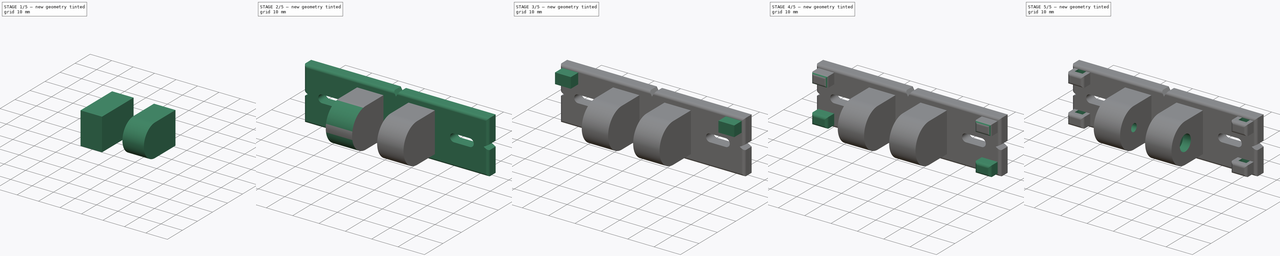
[diagram: build sequence overview — one tinted view per stage of 5, left to right]
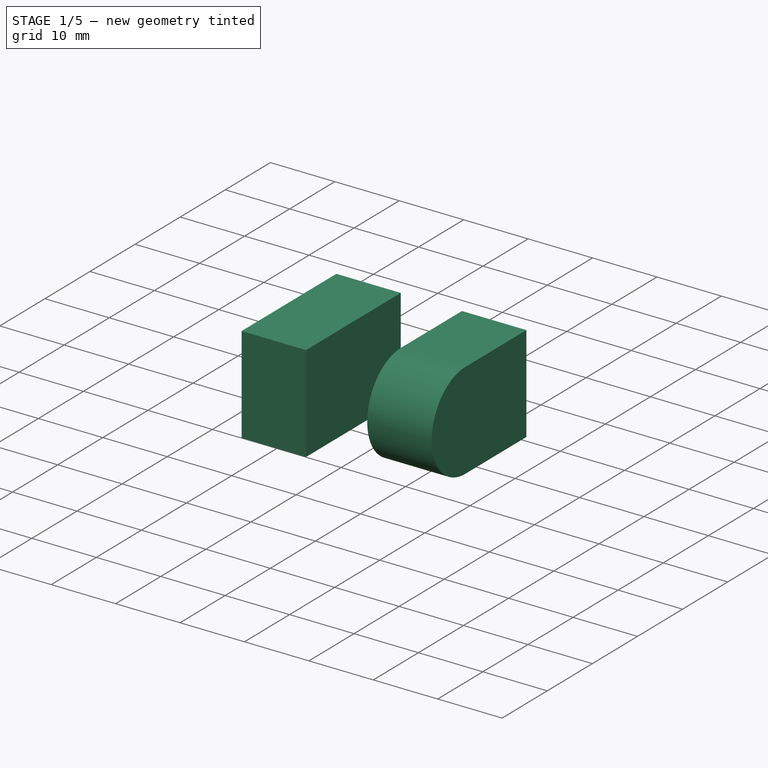
[diagram: stage 1 of 5 — iso view after this stage's code; geometry added in this stage tinted green]
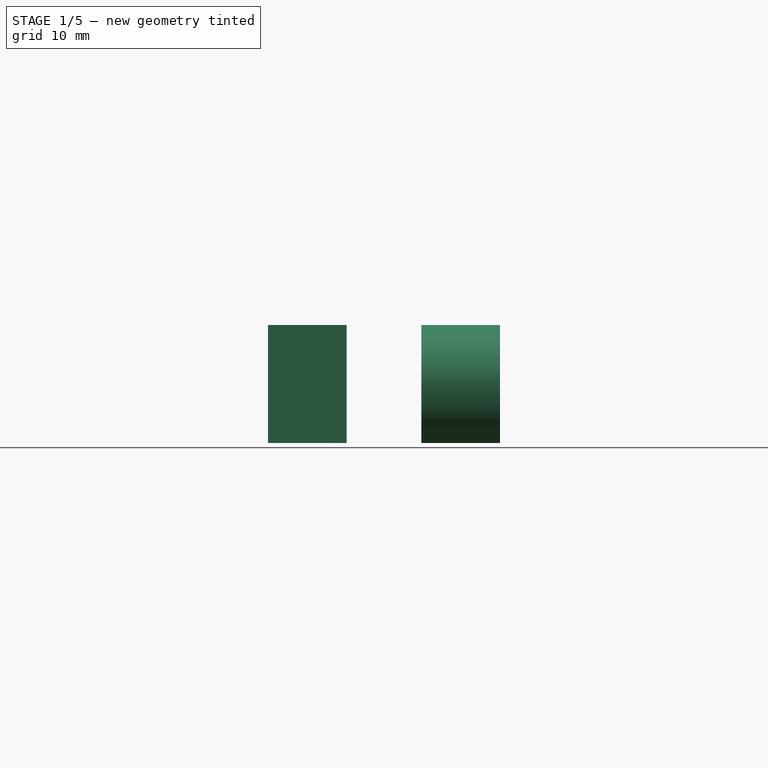
[diagram: stage 1 of 5 — front view after this stage's code; geometry added in this stage tinted green]
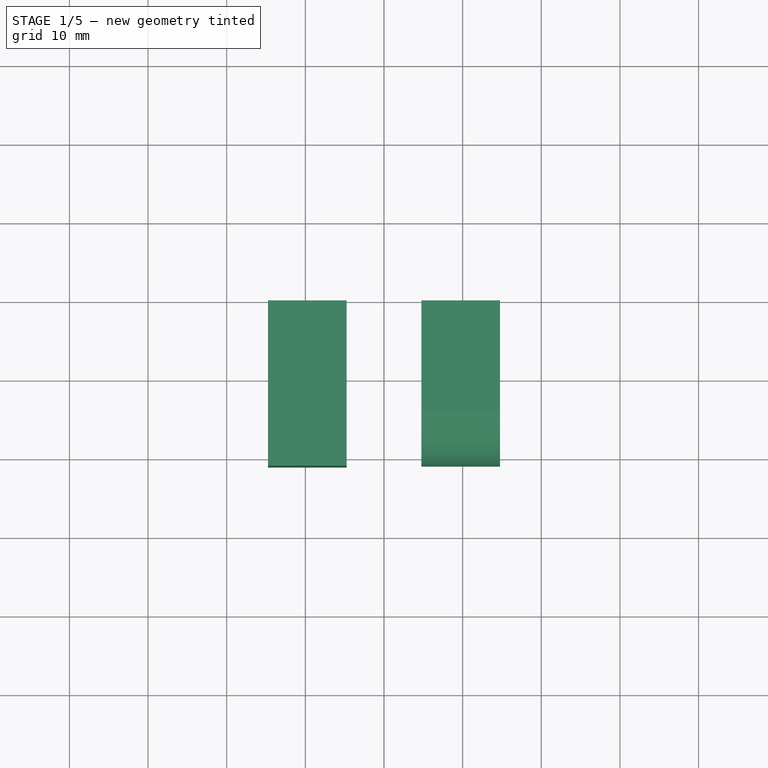
[diagram: stage 1 of 5 — top view after this stage's code; geometry added in this stage tinted green]
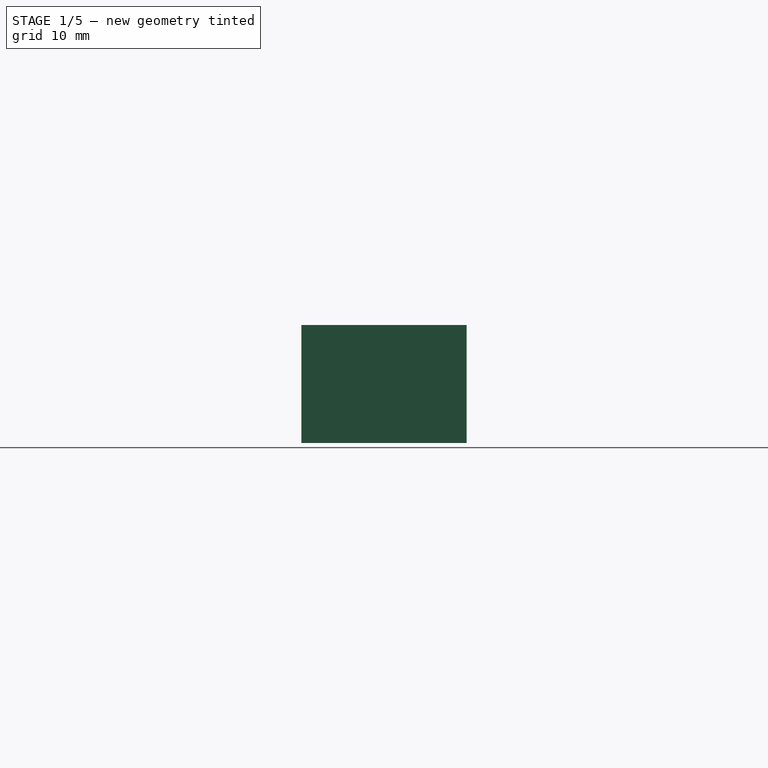
[diagram: stage 1 of 5 — right view after this stage's code; geometry added in this stage tinted green]
FCSTD DOCUMENT  (FreeCAD 0.19R)
Label: Camera_Mount_Base2
License: All rights reserved
LicenseURL: http://en.wikipedia.org/wiki/All_rights_reserved
objects: Sketcher::SketchObject×10, PartDesign::Pad×7, PartDesign::Fillet×4, PartDesign::Body×3, PartDesign::Boolean×2, PartDesign::Pocket×2, Spreadsheet::Sheet×1, PartDesign::Hole×1, App::Part×1
note: 43 computed .brp shape members not serialized (recipe doc carries the construction recipe); baked Part::Feature solids carry a one-line shape summary decoded from their .brp

FEATURE [Sketcher::SketchObject] Sketch001
  FullyConstrained = true
  MapMode = 5
  Placement = pos=(0,0,0) rot=(1,0,0;1.5708rad)
  Support = -> [XZ_Plane002]
  expr: Constraints[8] = Spreadsheet.HingeHeight
  expr: Constraints[9] = Spreadsheet.HingeWidth
  expr: Constraints[10] = Spreadsheet.HingeInnerSeparation / 2
  sketch-geometry (4):
    g0: LineSegment StartX=-14.75 StartY=7.5 StartZ=0 EndX=-4.75 EndY=7.5 EndZ=0
    g1: LineSegment StartX=-4.75 StartY=7.5 StartZ=0 EndX=-4.75 EndY=-7.5 EndZ=0
    g2: LineSegment StartX=-4.75 StartY=-7.5 StartZ=0 EndX=-14.75 EndY=-7.5 EndZ=0
    g3: LineSegment StartX=-14.75 StartY=-7.5 StartZ=0 EndX=-14.75 EndY=7.5 EndZ=0
  constraints (11):
    c: Coincident(g0,g1)
    c: Coincident(g1,g2)
    c: Coincident(g2,g3)
    c: Coincident(g3,g0)
    c: Horizontal(g0)
    c: Horizontal(g2)
    c: Vertical(g3)
    c: Symmetric(g0,g1,g-1)
    c: DistanceY(g3,g3) = 15
    c: DistanceX(g0,g0) = 10
    c: DistanceX(g0,g-1) = 4.75
FEATURE [PartDesign::Pad] Pad001
  AllowMultiFace = false
  Direction = (1,1,1)
  Length = 21
  Length2 = 100
  Placement = pos=(0,0,0) rot=(1,0,0;1.5708rad)
  Profile = -> Sketch001
  Type = 0
  expr: Length = Spreadsheet.HingeDepth
FEATURE [Sketcher::SketchObject] Sketch005
  FullyConstrained = true
  MapMode = 5
  Placement = pos=(0,0,0) rot=(1,0,0;1.5708rad)
  Support = -> [XZ_Plane003]
  expr: Constraints[7] = Spreadsheet.HingeWidth
  expr: Constraints[9] = Spreadsheet.HingeHeight
  expr: Constraints[10] = Spreadsheet.HingeInnerSeparation / 2
  sketch-geometry (4):
    g0: LineSegment StartX=4.75 StartY=7.5 StartZ=0 EndX=14.75 EndY=7.5 EndZ=0
    g1: LineSegment StartX=14.75 StartY=7.5 StartZ=0 EndX=14.75 EndY=-7.5 EndZ=0
    g2: LineSegment StartX=14.75 StartY=-7.5 StartZ=0 EndX=4.75 EndY=-7.5 EndZ=0
    g3: LineSegment StartX=4.75 StartY=-7.5 StartZ=0 EndX=4.75 EndY=7.5 EndZ=0
  constraints (11):
    c: Coincident(g0,g1)
    c: Coincident(g1,g2)
    c: Coincident(g2,g3)
    c: Coincident(g3,g0)
    c: Horizontal(g0)
    c: Horizontal(g2)
    c: Vertical(g1)
    c: DistanceX(g0,g0) = 10
    c: Symmetric(g0,g2,g-1)
    c: DistanceY(g1,g1) = 15
    c: DistanceX(g-1,g0) = 4.75
FEATURE [PartDesign::Pad] Pad002
  AllowMultiFace = false
  Direction = (1,1,1)
  Length = 21
  Length2 = 100
  Placement = pos=(0,0,0) rot=(1,0,0;1.5708rad)
  Profile = -> Sketch005
  Type = 0
  expr: Length = Spreadsheet.HingeDepth
FEATURE [PartDesign::Fillet] Fillet002
  Base = -> Pad002 [Edge10,Edge4]
  BaseFeature = -> Pad002
  Placement = pos=(0,0,0) rot=(1,0,0;1.5708rad)
  Radius = 7.499
  SupportTransform = false
  expr: Radius = Spreadsheet.HingeHeight / 2 - 0.001
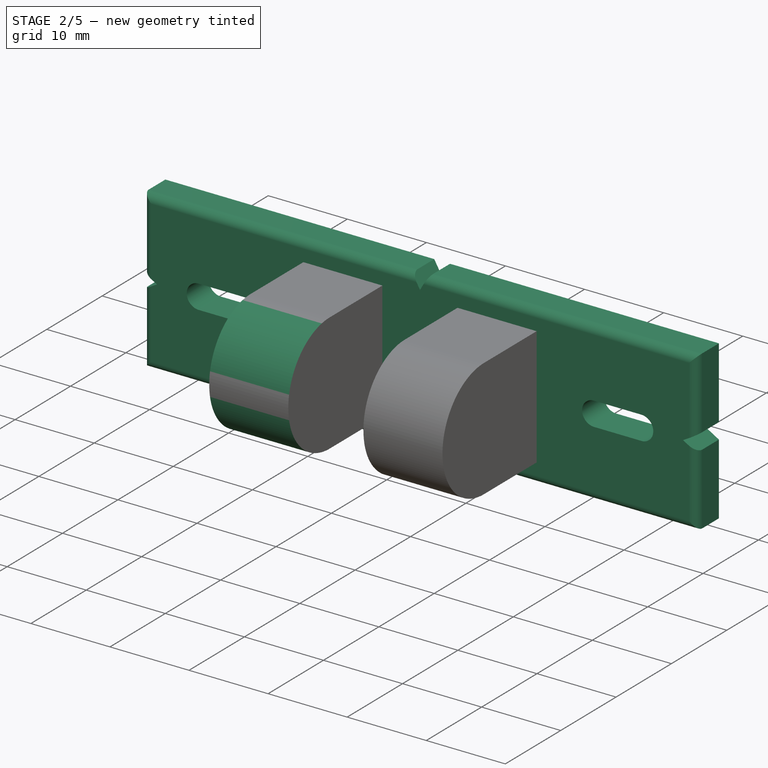
[diagram: stage 2 of 5 — iso view after this stage's code; geometry added in this stage tinted green]
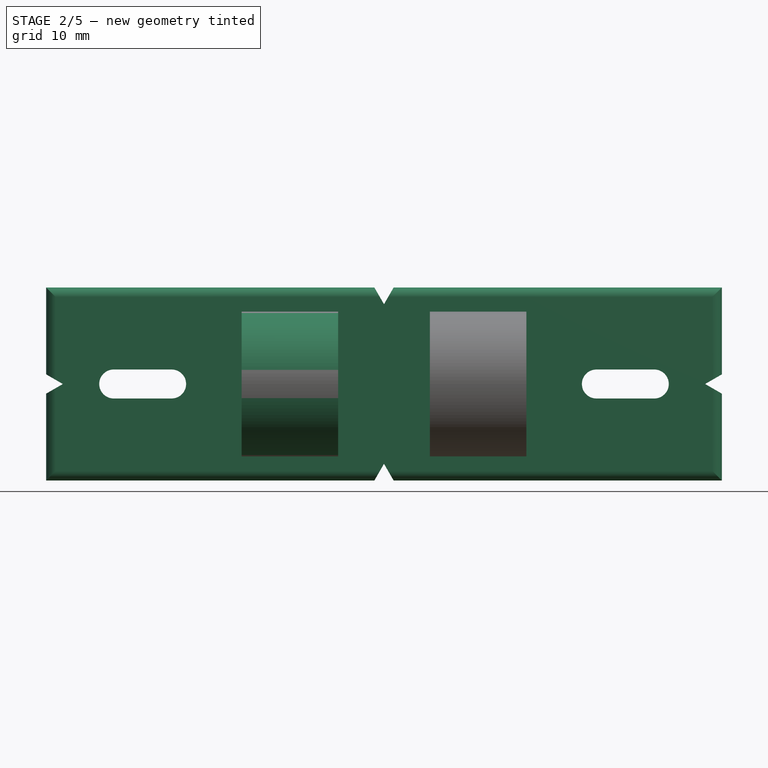
[diagram: stage 2 of 5 — front view after this stage's code; geometry added in this stage tinted green]
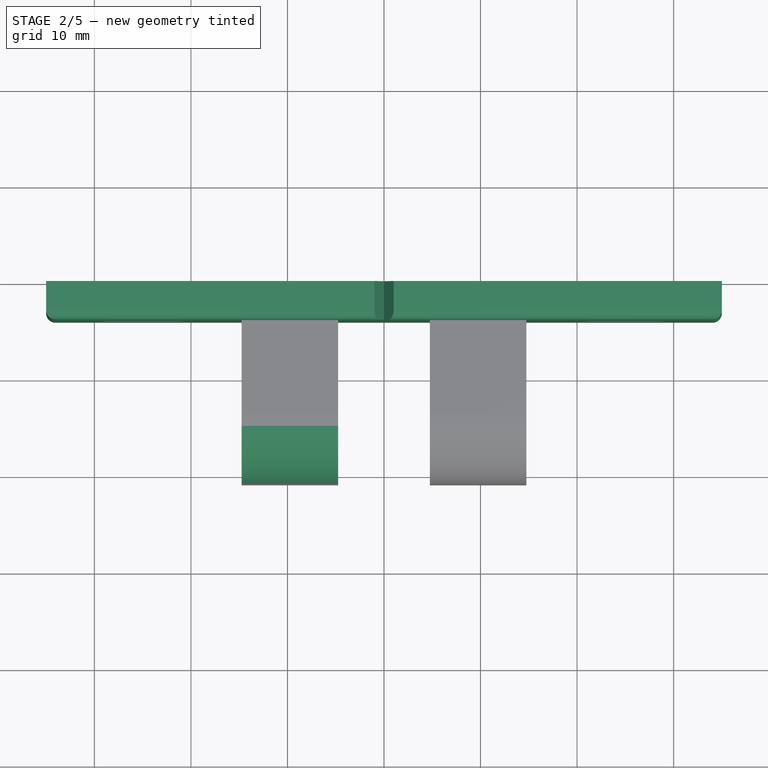
[diagram: stage 2 of 5 — top view after this stage's code; geometry added in this stage tinted green]
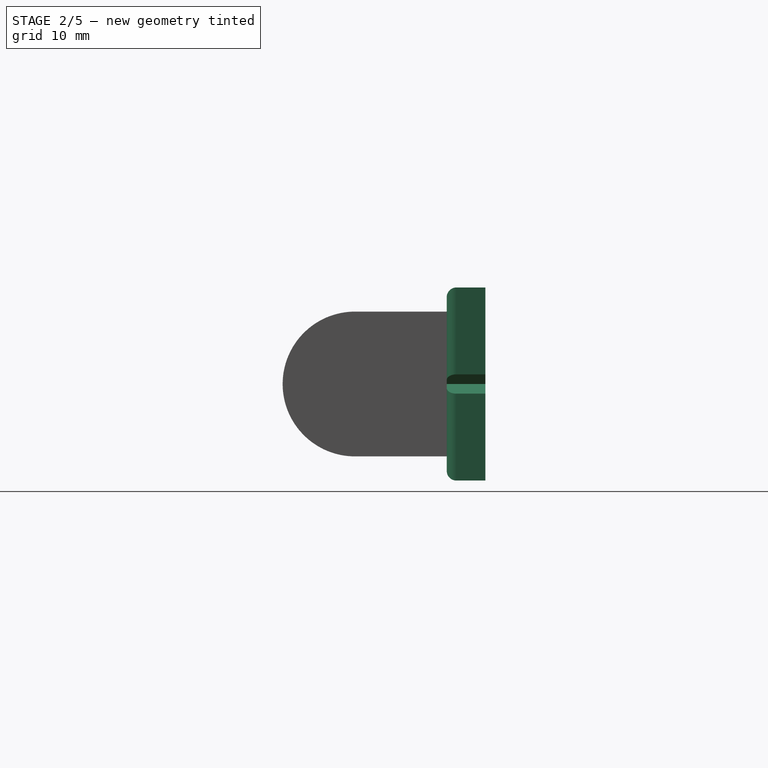
[diagram: stage 2 of 5 — right view after this stage's code; geometry added in this stage tinted green]
FEATURE [Spreadsheet::Sheet] Spreadsheet
  cells = A1=Dimension Name; B1=Value; A2=MountWidth; B2(MountWidth)=70; A3=MountHeight; B3(MountHeight)=20; A4=MountDepth; B4(MountDepth)=4; A5=MountFillet; B5(MountFillet)=1; A6=SlotWidth; B6(SlotWidth)=6; A7=SlotHeight; B7(SlotHeight)=3; A8=SlotOffset; B8(SlotOffset)=22; A9=NotchEdge; B9(NotchEdge)=2; A10=HingeWidth; B10(HingeWidth)=10; A11=HingeHeight; B11(HingeHeight)=15; A12=HingeInnerSeparation; B12(HingeInnerSeparation)=9.5; A13=HingeDepth; B13(HingeDepth)==HingeHeight + MountDepth + 2; A14=StressHeight; B14(StressHeight)=4; A15=StressWidth; B15(StressWidth)=6; A16=StressDepth; B16(StressDepth)==MountDepth + 4
FEATURE [Sketcher::SketchObject] Sketch
  FullyConstrained = true
  MapMode = 5
  Placement = pos=(0,0,0) rot=(1,0,0;1.5708rad)
  Support = -> [XZ_Plane001]
  expr: Constraints[38] = Spreadsheet.NotchEdge
  expr: Constraints[39] = Spreadsheet.NotchEdge
  expr: Constraints[61] = Spreadsheet.NotchEdge
  expr: Constraints[48] = Spreadsheet.NotchEdge
  expr: Constraints[49] = Spreadsheet.NotchEdge
  expr: Constraints[30] = Spreadsheet.NotchEdge
  expr: Constraints[36] = Spreadsheet.NotchEdge
  expr: Constraints[50] = Spreadsheet.NotchEdge
  expr: Constraints[59] = Spreadsheet.NotchEdge
  expr: Constraints[60] = Spreadsheet.NotchEdge
  expr: Constraints[1] = Spreadsheet.MountHeight
  sketch-geometry (24):
    g0: ArcOfCircle CenterX=-28 CenterY=0 CenterZ=0 NormalX=0 NormalY=0 NormalZ=1 AngleXU=0 Radius=1.5 StartAngle=1.5708 EndAngle=4.71239
    g1: ArcOfCircle CenterX=-22 CenterY=0 CenterZ=0 NormalX=0 NormalY=0 NormalZ=1 AngleXU=0 Radius=1.5 StartAngle=4.71239 EndAngle=7.85398
    g2: LineSegment StartX=-28 StartY=-1.5 StartZ=0 EndX=-22 EndY=-1.5 EndZ=0
    g3: LineSegment StartX=-28 StartY=1.5 StartZ=0 EndX=-22 EndY=1.5 EndZ=0
    g4: ArcOfCircle CenterX=22 CenterY=0 CenterZ=0 NormalX=0 NormalY=0 NormalZ=1 AngleXU=0 Radius=1.5 StartAngle=1.5708 EndAngle=4.71239
    g5: ArcOfCircle CenterX=28 CenterY=-1e-16 CenterZ=0 NormalX=0 NormalY=0 NormalZ=1 AngleXU=0 Radius=1.5 StartAngle=4.71239 EndAngle=7.85398
    g6: LineSegment StartX=22 StartY=-1.5 StartZ=0 EndX=28 EndY=-1.5 EndZ=0
    g7: LineSegment StartX=22 StartY=1.5 StartZ=0 EndX=28 EndY=1.5 EndZ=0
    g8: LineSegment StartX=-35 StartY=10 StartZ=0 EndX=-1 EndY=10 EndZ=0
    g9: LineSegment StartX=-1 StartY=10 StartZ=0 EndX=0 EndY=8.26795 EndZ=0
    g10: LineSegment StartX=0 StartY=8.26795 StartZ=0 EndX=1 EndY=10 EndZ=0
    g11: LineSegment StartX=1 StartY=10 StartZ=0 EndX=35 EndY=10 EndZ=0
    g12: LineSegment StartX=-35 StartY=-10 StartZ=0 EndX=-1 EndY=-10 EndZ=0
    g13: LineSegment StartX=-1 StartY=-10 StartZ=0 EndX=0 EndY=-8.26795 EndZ=0
    g14: LineSegment StartX=0 StartY=-8.26795 StartZ=0 EndX=1 EndY=-10 EndZ=0
    g15: LineSegment StartX=1 StartY=-10 StartZ=0 EndX=35 EndY=-10 EndZ=0
    g16: LineSegment StartX=35 StartY=10 StartZ=0 EndX=35 EndY=1 EndZ=0
    g17: LineSegment StartX=35 StartY=1 StartZ=0 EndX=33.2679 EndY=0 EndZ=0
    g18: LineSegment StartX=33.2679 StartY=0 StartZ=0 EndX=35 EndY=-1 EndZ=0
    g19: LineSegment StartX=35 StartY=-1 StartZ=0 EndX=35 EndY=-10 EndZ=0
    g20: LineSegment StartX=-35 StartY=10 StartZ=0 EndX=-35 EndY=1 EndZ=0
    g21: LineSegment StartX=-35 StartY=1 StartZ=0 EndX=-33.2679 EndY=0 EndZ=0
    g22: LineSegment StartX=-33.2679 StartY=0 StartZ=0 EndX=-35 EndY=-1 EndZ=0
    g23: LineSegment StartX=-35 StartY=-1 StartZ=0 EndX=-35 EndY=-10 EndZ=0
  constraints (63):
    c: Symmetric(g11,g12,g-1)
    c: DistanceY(g12,g8) = 20
    c: Tangent(g0,g3) = 1.5708
    c: Tangent(g0,g2) = -1.5708
    c: Tangent(g2,g1) = -1.5708
    c: Tangent(g3,g1) = 1.5708
    c: Horizontal(g2)
    c: Equal(g0,g1)
    c: DistanceX(g0,g1) = 6
    c: PointOnObject(g0,g-1)
    c: DistanceY(g0,g0) = 3
    c: DistanceX(g1,g-1) = 22
    c: Tangent(g4,g7) = 1.5708
    c: Tangent(g4,g6) = -1.5708
    c: Tangent(g6,g5) = -1.5708
    c: Tangent(g7,g5) = 1.5708
    c: Horizontal(g6)
    c: Equal(g4,g5)
    c: PointOnObject(g4,g-1)
    c: Distance(g4,g-2) = 22
    c: Distance(g4,g5) = 6
    c: Distance(g5,g5) = 3
    c: Horizontal(g8)
    c: Coincident(g8,g9)
    c: PointOnObject(g9,g-2)
    c: Coincident(g9,g10)
    c: Coincident(g10,g11)
    c: Distance(g8,g11) = 70
    c: Distance(g10,g8) = 2
    c: Distance(g9) = 2
    c: Distance(g10) = 2
    c: Horizontal(g12)
    c: Coincident(g12,g13)
    c: PointOnObject(g13,g-2)
    c: Coincident(g13,g14)
    c: Coincident(g14,g15)
    c: Distance(g14) = 2
    c: Tangent(g12,g15)
    c: Distance(g13) = 2
    c: Distance(g12,g14) = 2
    c: Coincident(g11,g16)
    c: Vertical(g16)
    c: Coincident(g16,g17)
    c: PointOnObject(g17,g-1)
    c: Coincident(g17,g18)
    c: Coincident(g18,g19)
    c: Coincident(g19,g15)
    c: Tangent(g16,g19)
    c: Distance(g16,g18) = 2
    c: Distance(g17) = 2
    c: Distance(g18) = 2
    c: Coincident(g8,g20)
    c: Vertical(g20)
    c: Coincident(g20,g21)
    c: PointOnObject(g21,g-1)
    c: Coincident(g21,g22)
    c: Coincident(g22,g23)
    c: Coincident(g23,g12)
    c: Tangent(g11,g8)
    c: DistanceY(g22,g20) = 2
    c: Distance(g22) = 2
    c: Distance(g21) = 2
    c: Tangent(g23,g20)
FEATURE [PartDesign::Pad] Pad
  AllowMultiFace = false
  Direction = (1,1,1)
  Length = 4
  Length2 = 100
  Placement = pos=(0,0,0) rot=(1,0,0;1.5708rad)
  Profile = -> Sketch
  Type = 0
  expr: Length = Spreadsheet.MountDepth
FEATURE [PartDesign::Fillet] Fillet
  Base = -> Pad [Edge37,Edge28,Edge25,Edge16,Edge13,Edge4,Edge48,Edge40]
  BaseFeature = -> Pad
  Placement = pos=(0,0,0) rot=(1,0,0;1.5708rad)
  Radius = 1
  SupportTransform = false
  expr: Radius = Spreadsheet.MountFillet
FEATURE [PartDesign::Fillet] Fillet001
  Base = -> Pad001 [Edge10,Edge4]
  BaseFeature = -> Pad001
  Placement = pos=(0,0,0) rot=(1,0,0;1.5708rad)
  Radius = 7.499
  SupportTransform = false
  expr: Radius = Spreadsheet.HingeHeight / 2 - 0.001
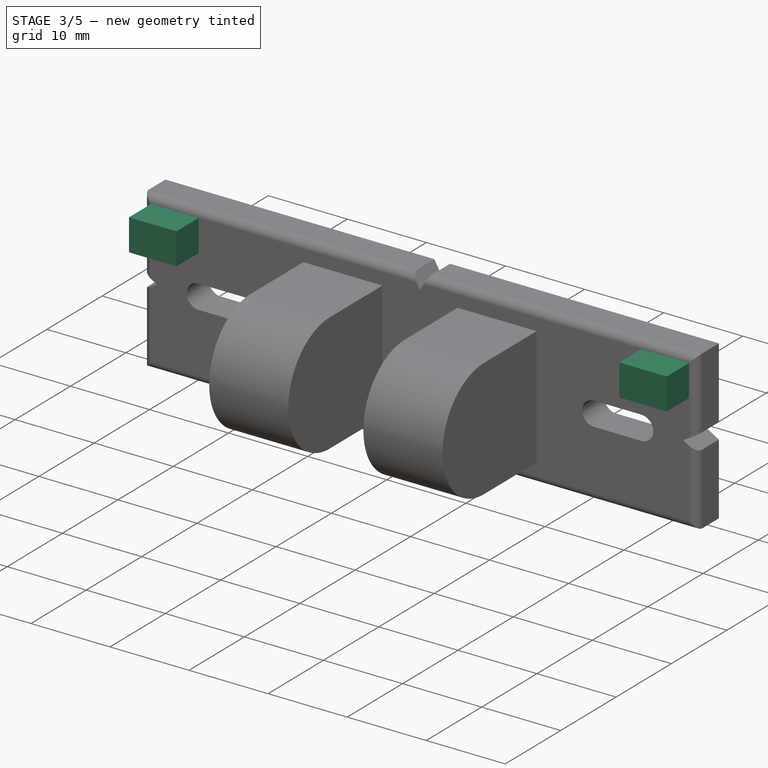
[diagram: stage 3 of 5 — iso view after this stage's code; geometry added in this stage tinted green]
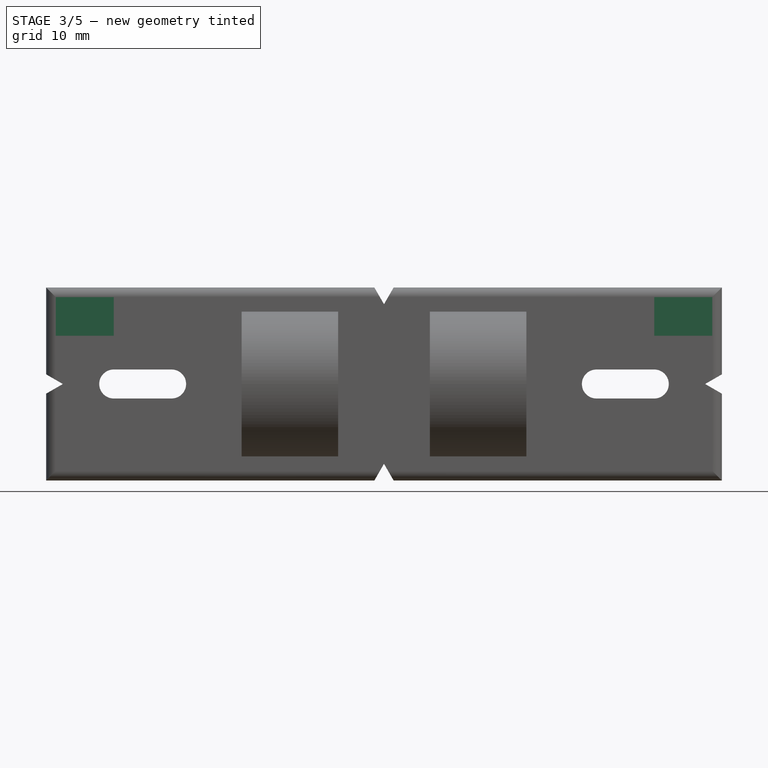
[diagram: stage 3 of 5 — front view after this stage's code; geometry added in this stage tinted green]
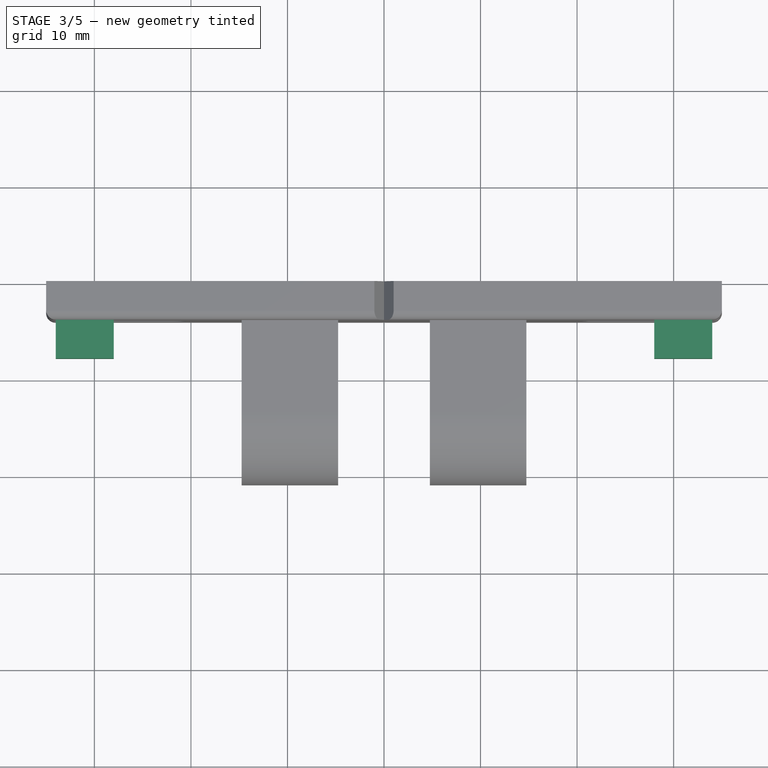
[diagram: stage 3 of 5 — top view after this stage's code; geometry added in this stage tinted green]
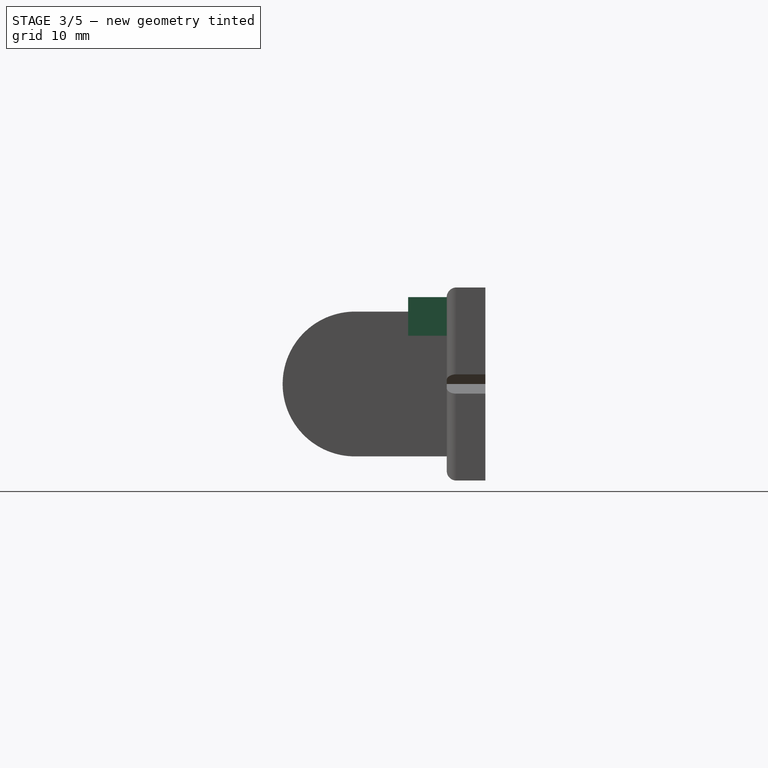
[diagram: stage 3 of 5 — right view after this stage's code; geometry added in this stage tinted green]
FEATURE [PartDesign::Body] Body001  label="Left hinge"
  Group = -> [Sketch001,Pad001,Fillet001]
  Origin = -> Origin002
  Tip = -> Fillet001
FEATURE [PartDesign::Boolean] Boolean
  BaseFeature = -> Fillet
  Group = -> [Body001]
  Type = 0
FEATURE [PartDesign::Body] Body002
  Group = -> [Sketch005,Pad002,Fillet002]
  Origin = -> Origin003
  Tip = -> Fillet002
FEATURE [PartDesign::Boolean] Boolean001
  BaseFeature = -> Boolean
  Group = -> [Body002]
  Type = 0
FEATURE [Sketcher::SketchObject] Sketch008
  FullyConstrained = true
  MapMode = 5
  Placement = pos=(0,0,0) rot=(1,0,0;1.5708rad)
  Support = -> [XZ_Plane001]
  expr: Constraints[8] = Spreadsheet.StressHeight
  expr: Constraints[9] = Spreadsheet.StressWidth
  expr: Constraints[10] = Spreadsheet.MountWidth / 2 - Spreadsheet.MountFillet
  expr: Constraints[11] = Spreadsheet.MountHeight / 2 - Spreadsheet.MountFillet
  sketch-geometry (4):
    g0: LineSegment StartX=-34 StartY=9 StartZ=0 EndX=-28 EndY=9 EndZ=0
    g1: LineSegment StartX=-28 StartY=9 StartZ=0 EndX=-28 EndY=5 EndZ=0
    g2: LineSegment StartX=-28 StartY=5 StartZ=0 EndX=-34 EndY=5 EndZ=0
    g3: LineSegment StartX=-34 StartY=5 StartZ=0 EndX=-34 EndY=9 EndZ=0
  constraints (12):
    c: Coincident(g0,g1)
    c: Coincident(g1,g2)
    c: Coincident(g2,g3)
    c: Coincident(g3,g0)
    c: Horizontal(g0)
    c: Horizontal(g2)
    c: Vertical(g1)
    c: Vertical(g3)
    c: DistanceY(g3,g3) = 4
    c: DistanceX(g0,g0) = 6
    c: DistanceX(g0,g-1) = 34
    c: DistanceY(g-1,g0) = 9
FEATURE [PartDesign::Pad] Pad003  label="Stress topleft"
  AllowMultiFace = false
  BaseFeature = -> Boolean001
  Direction = (1,1,1)
  Length = 8
  Length2 = 100
  Profile = -> Sketch008
  Type = 0
  expr: Length = Spreadsheet.StressDepth
FEATURE [Sketcher::SketchObject] Sketch009
  FullyConstrained = true
  MapMode = 5
  Placement = pos=(0,0,0) rot=(1,0,0;1.5708rad)
  Support = -> [XZ_Plane001]
  expr: Constraints[8] = Spreadsheet.StressHeight
  expr: Constraints[9] = Spreadsheet.StressWidth
  expr: Constraints[10] = Spreadsheet.MountWidth / 2 - Spreadsheet.MountFillet
  expr: Constraints[11] = Spreadsheet.MountHeight / 2 - Spreadsheet.MountFillet
  sketch-geometry (4):
    g0: LineSegment StartX=28 StartY=9 StartZ=0 EndX=34 EndY=9 EndZ=0
    g1: LineSegment StartX=34 StartY=9 StartZ=0 EndX=34 EndY=5 EndZ=0
    g2: LineSegment StartX=34 StartY=5 StartZ=0 EndX=28 EndY=5 EndZ=0
    g3: LineSegment StartX=28 StartY=5 StartZ=0 EndX=28 EndY=9 EndZ=0
  constraints (12):
    c: Coincident(g0,g1)
    c: Coincident(g1,g2)
    c: Coincident(g2,g3)
    c: Coincident(g3,g0)
    c: Horizontal(g0)
    c: Horizontal(g2)
    c: Vertical(g1)
    c: Vertical(g3)
    c: DistanceY(g1,g1) = 4
    c: DistanceX(g0,g0) = 6
    c: DistanceX(g-1,g0) = 34
    c: DistanceY(g-1,g0) = 9
FEATURE [PartDesign::Pad] Pad004  label="Stress topright"
  AllowMultiFace = false
  BaseFeature = -> Pad003
  Direction = (1,1,1)
  Length = 8
  Length2 = 100
  Profile = -> Sketch009
  Type = 0
  expr: Length = Spreadsheet.StressDepth
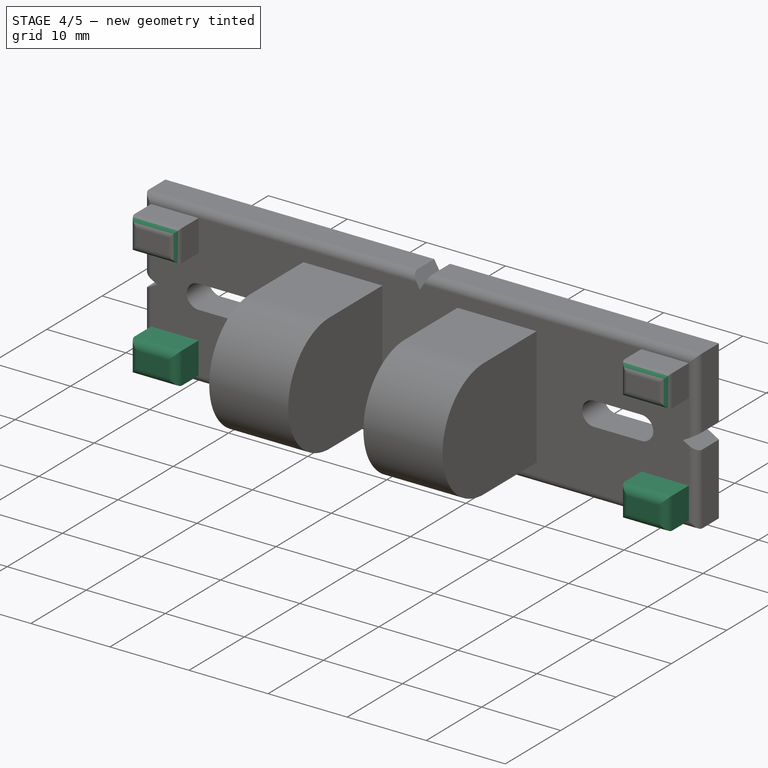
[diagram: stage 4 of 5 — iso view after this stage's code; geometry added in this stage tinted green]
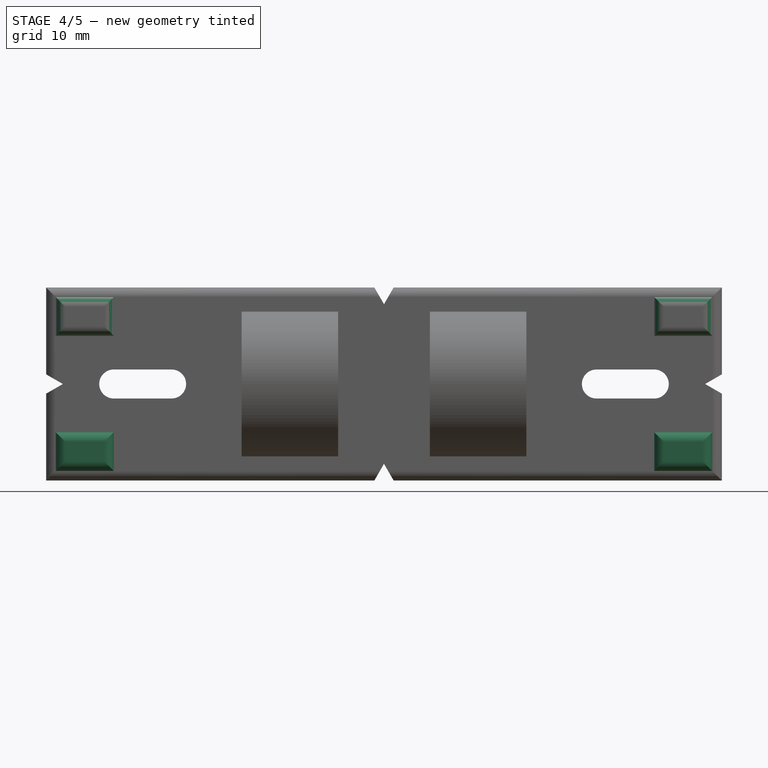
[diagram: stage 4 of 5 — front view after this stage's code; geometry added in this stage tinted green]
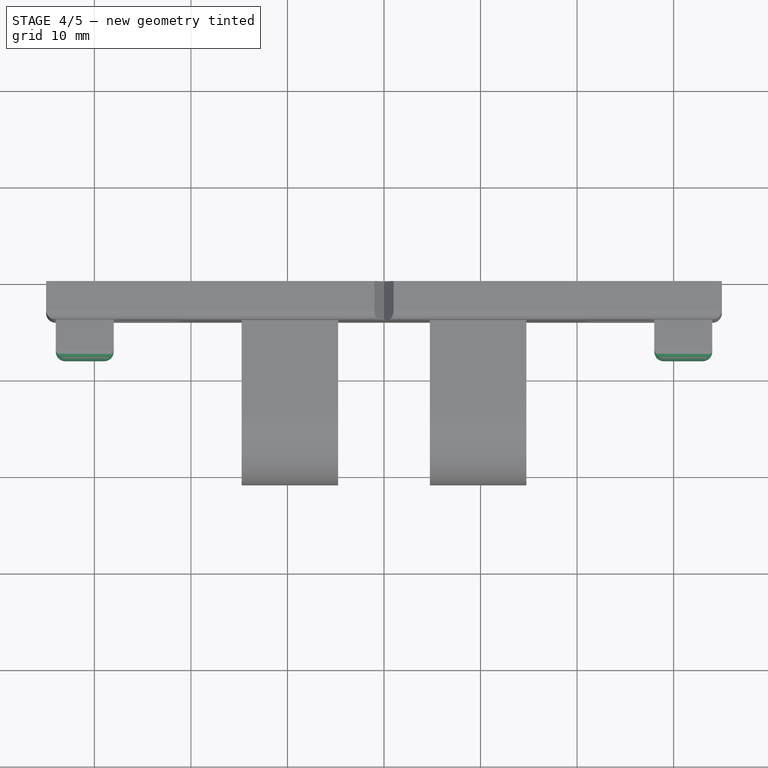
[diagram: stage 4 of 5 — top view after this stage's code; geometry added in this stage tinted green]
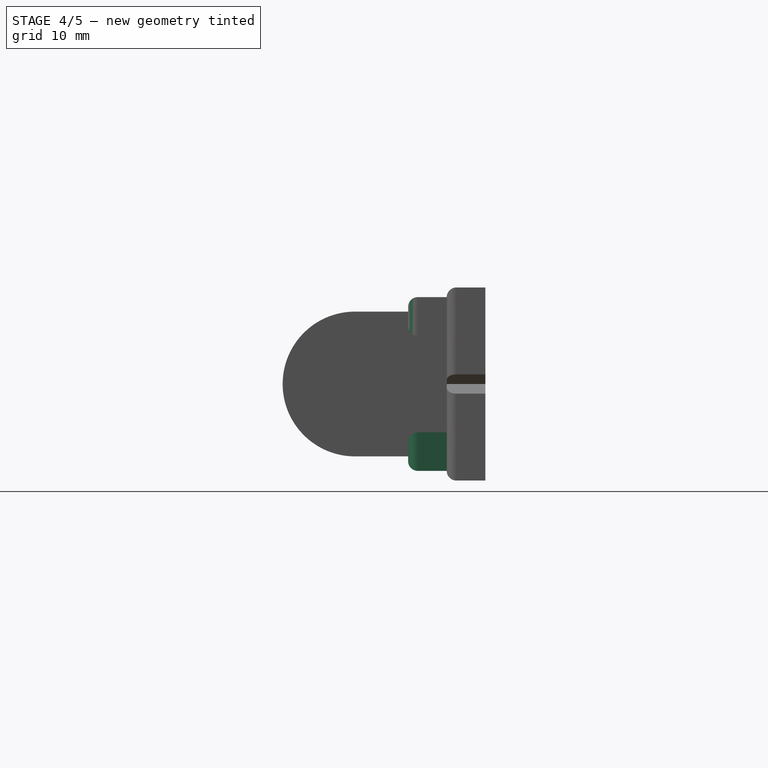
[diagram: stage 4 of 5 — right view after this stage's code; geometry added in this stage tinted green]
FEATURE [Sketcher::SketchObject] Sketch010
  FullyConstrained = true
  MapMode = 5
  Placement = pos=(0,0,0) rot=(1,0,0;1.5708rad)
  Support = -> [XZ_Plane001]
  expr: Constraints[8] = Spreadsheet.StressWidth
  expr: Constraints[9] = Spreadsheet.StressHeight
  expr: Constraints[10] = Spreadsheet.MountHeight / 2 - Spreadsheet.MountFillet
  expr: Constraints[11] = Spreadsheet.MountWidth / 2 - Spreadsheet.MountFillet
  sketch-geometry (4):
    g0: LineSegment StartX=-34 StartY=-5 StartZ=0 EndX=-28 EndY=-5 EndZ=0
    g1: LineSegment StartX=-28 StartY=-5 StartZ=0 EndX=-28 EndY=-9 EndZ=0
    g2: LineSegment StartX=-28 StartY=-9 StartZ=0 EndX=-34 EndY=-9 EndZ=0
    g3: LineSegment StartX=-34 StartY=-9 StartZ=0 EndX=-34 EndY=-5 EndZ=0
  constraints (12):
    c: Coincident(g0,g1)
    c: Coincident(g1,g2)
    c: Coincident(g2,g3)
    c: Coincident(g3,g0)
    c: Horizontal(g0)
    c: Horizontal(g2)
    c: Vertical(g1)
    c: Vertical(g3)
    c: DistanceX(g2,g2) = 6
    c: DistanceY(g3,g3) = 4
    c: DistanceY(g2,g-1) = 9
    c: DistanceX(g2,g-1) = 34
FEATURE [PartDesign::Pad] Pad005  label="Stress bottomleft"
  AllowMultiFace = false
  BaseFeature = -> Pad004
  Direction = (1,1,1)
  Length = 8
  Length2 = 100
  Profile = -> Sketch010
  Type = 0
  expr: Length = Spreadsheet.StressDepth
FEATURE [Sketcher::SketchObject] Sketch011
  FullyConstrained = true
  MapMode = 5
  Placement = pos=(0,0,0) rot=(1,0,0;1.5708rad)
  Support = -> [XZ_Plane001]
  expr: Constraints[8] = Spreadsheet.StressHeight
  expr: Constraints[9] = Spreadsheet.StressWidth
  expr: Constraints[10] = Spreadsheet.MountHeight / 2 - Spreadsheet.MountFillet
  expr: Constraints[11] = Spreadsheet.MountWidth / 2 - Spreadsheet.MountFillet
  sketch-geometry (4):
    g0: LineSegment StartX=28 StartY=-5 StartZ=0 EndX=34 EndY=-5 EndZ=0
    g1: LineSegment StartX=34 StartY=-5 StartZ=0 EndX=34 EndY=-9 EndZ=0
    g2: LineSegment StartX=34 StartY=-9 StartZ=0 EndX=28 EndY=-9 EndZ=0
    g3: LineSegment StartX=28 StartY=-9 StartZ=0 EndX=28 EndY=-5 EndZ=0
  constraints (12):
    c: Coincident(g0,g1)
    c: Coincident(g1,g2)
    c: Coincident(g2,g3)
    c: Coincident(g3,g0)
    c: Horizontal(g0)
    c: Horizontal(g2)
    c: Vertical(g1)
    c: Vertical(g3)
    c: DistanceY(g1,g1) = 4
    c: DistanceX(g2,g2) = 6
    c: DistanceY(g1,g-1) = 9
    c: DistanceX(g-1,g1) = 34
FEATURE [PartDesign::Pad] Pad006  label="Stress bottomright"
  AllowMultiFace = false
  BaseFeature = -> Pad005
  Direction = (1,1,1)
  Length = 8
  Length2 = 100
  Profile = -> Sketch011
  Type = 0
  expr: Length = Spreadsheet.StressDepth
FEATURE [PartDesign::Fillet] Fillet003
  Base = -> Pad006 [Edge135,Edge139,Edge138,Edge66,Edge188,Edge190,Edge146,Edge143,Edge151,Edge191,Edge193,Edge154,Edge162,Edge159,Edge194,Edge196]
  BaseFeature = -> Pad006
  Radius = 1
  SupportTransform = false
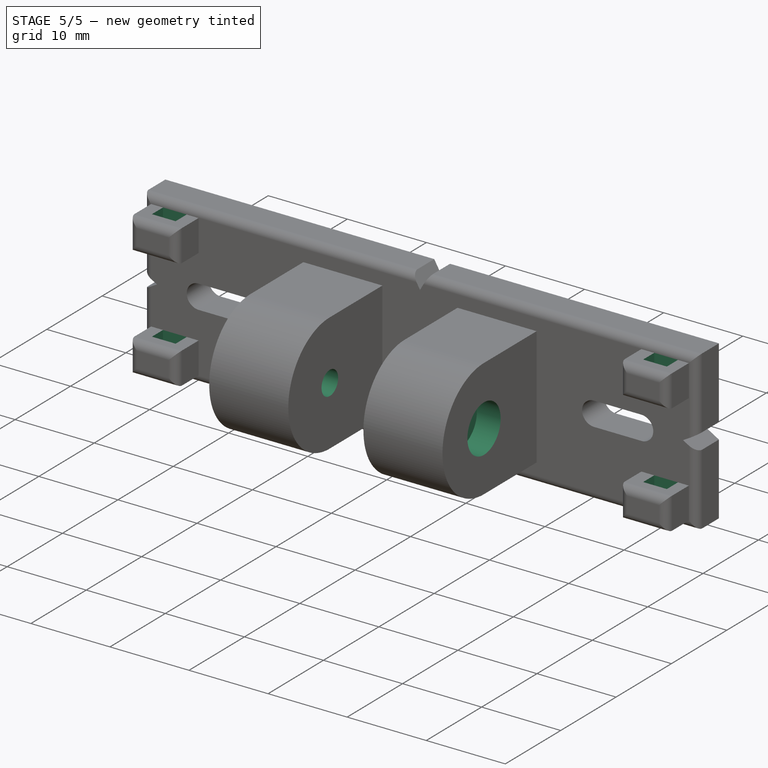
[diagram: stage 5 of 5 — iso view after this stage's code; geometry added in this stage tinted green]
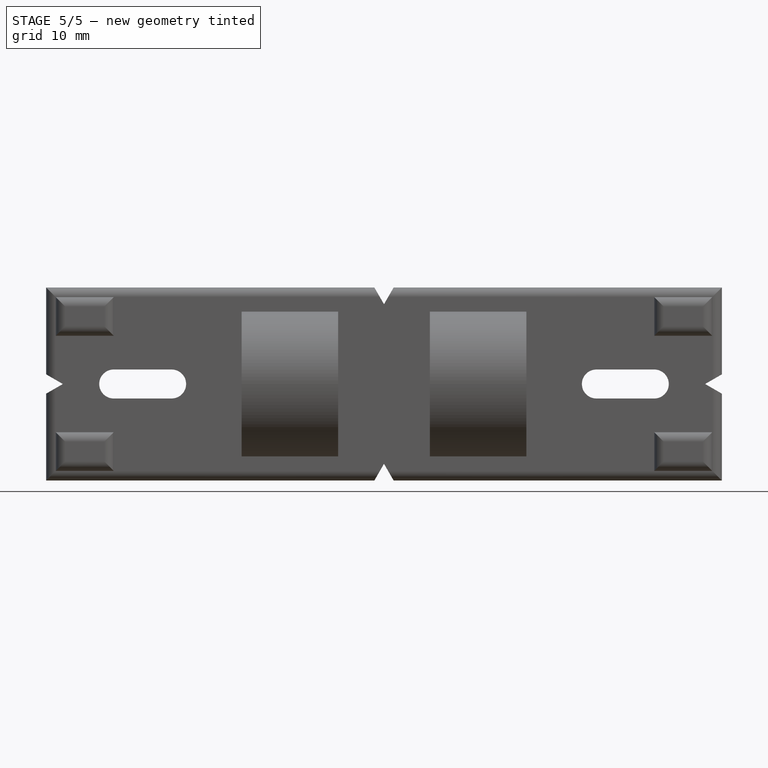
[diagram: stage 5 of 5 — front view after this stage's code; geometry added in this stage tinted green]
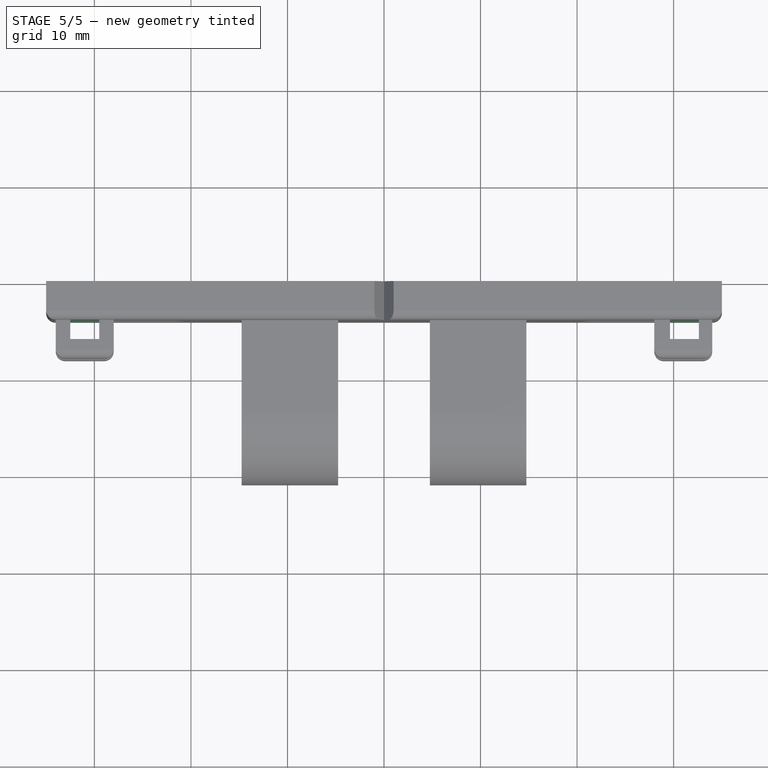
[diagram: stage 5 of 5 — top view after this stage's code; geometry added in this stage tinted green]
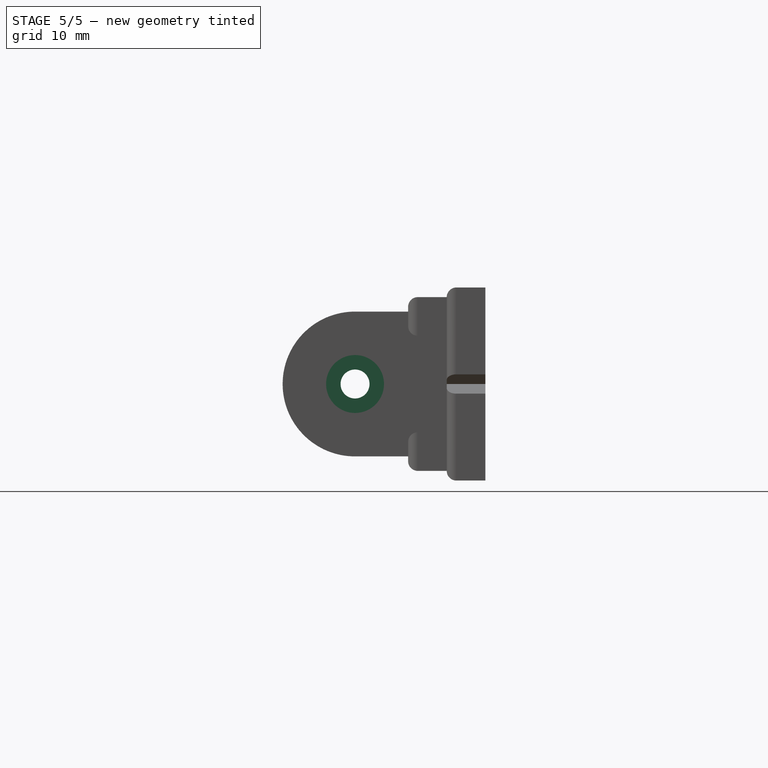
[diagram: stage 5 of 5 — right view after this stage's code; geometry added in this stage tinted green]
FEATURE [Sketcher::SketchObject] Sketch012
  AttachmentOffset = pos=(0,0,14.75) rot=(0,0,1;0rad)
  FullyConstrained = false
  MapMode = 5
  Placement = pos=(14.75,-3.3e-15,3.3e-15) rot=(0.57735,0.57735,0.57735;2.0944rad)
  Support = -> [YZ_Plane001]
  expr: .AttachmentOffset.Base.z = Spreadsheet.HingeWidth + Spreadsheet.HingeInnerSeparation / 2
  expr: Constraints[1] = Spreadsheet.HingeDepth - Spreadsheet.HingeHeight / 2
  sketch-geometry (1):
    g0: Circle CenterX=-13.5 CenterY=0 CenterZ=0 NormalX=0 NormalY=0 NormalZ=1 AngleXU=0 Radius=3.54047
  constraints (2):
    c: PointOnObject(g0,g-1)
    c: DistanceX(g0,g-1) = 13.5
FEATURE [PartDesign::Hole] Hole001
  AllowMultiFace = false
  BaseFeature = -> Fillet003
  Depth = 100
  DepthType = 0
  Diameter = 3
  DrillForDepth = false
  DrillPoint = 0
  DrillPointAngle = 118
  HoleCutCountersinkAngle = 90
  HoleCutCustomValues = false
  HoleCutDepth = 3
  HoleCutDiameter = 6
  HoleCutType = 1
  ModelActualThread = false
  Profile = -> Sketch012
  Tapered = false
  TaperedAngle = 90
  ThreadAngle = 0
  ThreadClass = 0
  ThreadCutOffInner = 0
  ThreadCutOffOuter = 0
  ThreadDirection = 0
  ThreadFit = 0
  ThreadPitch = 0
  ThreadSize = 0
  ThreadType = 0
  Threaded = false
FEATURE [Sketcher::SketchObject] Sketch013
  FullyConstrained = true
  MapMode = 5
  Support = -> [XY_Plane001]
  expr: Constraints[11] = Spreadsheet.MountWidth / 2 - 2.5
  expr: Constraints[10] = Spreadsheet.MountDepth
  expr: Constraints[8] = Spreadsheet.StressWidth - 3
  sketch-geometry (4):
    g0: LineSegment StartX=-32.5 StartY=-4 StartZ=0 EndX=-29.5 EndY=-4 EndZ=0
    g1: LineSegment StartX=-29.5 StartY=-4 StartZ=0 EndX=-29.5 EndY=-6 EndZ=0
    g2: LineSegment StartX=-29.5 StartY=-6 StartZ=0 EndX=-32.5 EndY=-6 EndZ=0
    g3: LineSegment StartX=-32.5 StartY=-6 StartZ=0 EndX=-32.5 EndY=-4 EndZ=0
  constraints (12):
    c: Coincident(g0,g1)
    c: Coincident(g1,g2)
    c: Coincident(g2,g3)
    c: Coincident(g3,g0)
    c: Horizontal(g0)
    c: Horizontal(g2)
    c: Vertical(g1)
    c: Vertical(g3)
    c: DistanceX(g2,g2) = 3
    c: DistanceY(g3,g3) = 2
    c: DistanceY(g0,g-1) = 4
    c: DistanceX(g0,g-1) = 32.5
FEATURE [PartDesign::Pocket] Pocket
  BaseFeature = -> Hole001
  Length = 30
  Length2 = 100
  Midplane = true
  Profile = -> Sketch013
  Type = 0
FEATURE [Sketcher::SketchObject] Sketch014
  FullyConstrained = false
  MapMode = 5
  Support = -> [XY_Plane001]
  expr: Constraints[10] = Spreadsheet.MountDepth
  expr: Constraints[8] = Spreadsheet.StressWidth - 3
  sketch-geometry (4):
    g0: LineSegment StartX=29.6207 StartY=-4 StartZ=0 EndX=32.6207 EndY=-4 EndZ=0
    g1: LineSegment StartX=32.6207 StartY=-4 StartZ=0 EndX=32.6207 EndY=-6 EndZ=0
    g2: LineSegment StartX=32.6207 StartY=-6 StartZ=0 EndX=29.6207 EndY=-6 EndZ=0
    g3: LineSegment StartX=29.6207 StartY=-6 StartZ=0 EndX=29.6207 EndY=-4 EndZ=0
  constraints (11):
    c: Coincident(g0,g1)
    c: Coincident(g1,g2)
    c: Coincident(g2,g3)
    c: Coincident(g3,g0)
    c: Horizontal(g0)
    c: Horizontal(g2)
    c: Vertical(g1)
    c: Vertical(g3)
    c: DistanceX(g2,g2) = 3
    c: DistanceY(g3,g3) = 2
    c: DistanceY(g0,g-1) = 4
FEATURE [PartDesign::Pocket] Pocket001
  BaseFeature = -> Pocket
  Length = 30
  Length2 = 100
  Midplane = true
  Profile = -> Sketch014
  Type = 0
FEATURE [PartDesign::Body] Body  label="Base"
  Group = -> [Sketch,Pad,Fillet,Boolean,Boolean001,Sketch008,Pad003,Sketch009,Pad004,Sketch010,Pad005,Sketch011,Pad006,Fillet003,Sketch012,Hole001,Sketch013,Pocket,Sketch014,Pocket001]
  Origin = -> Origin001
  Tip = -> Pocket001
FEATURE [App::Part] Part  label="CameraMount"
  Group = -> [Body]
  Origin = -> Origin
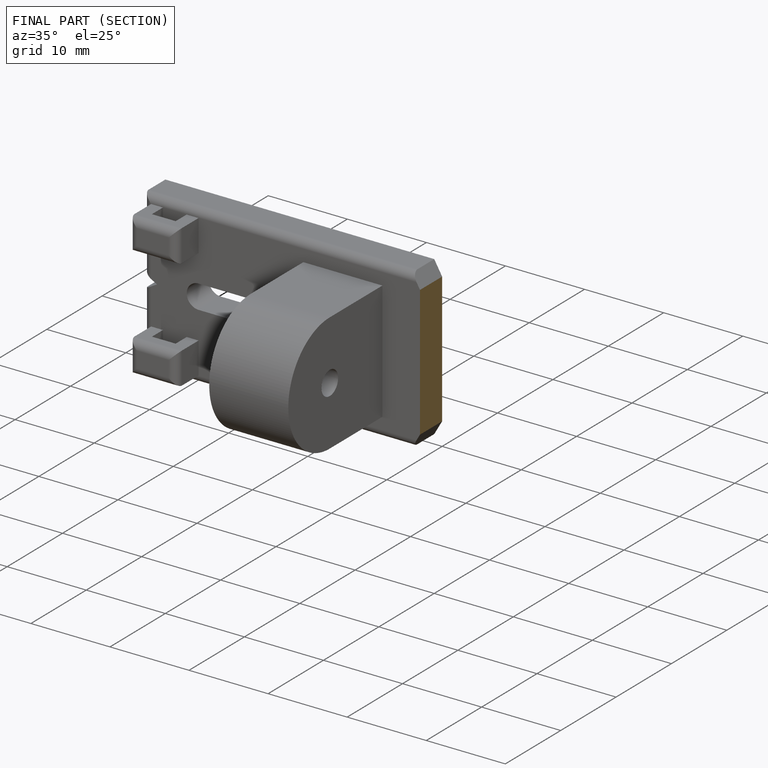
[diagram: finished part — half-section view (interior)]
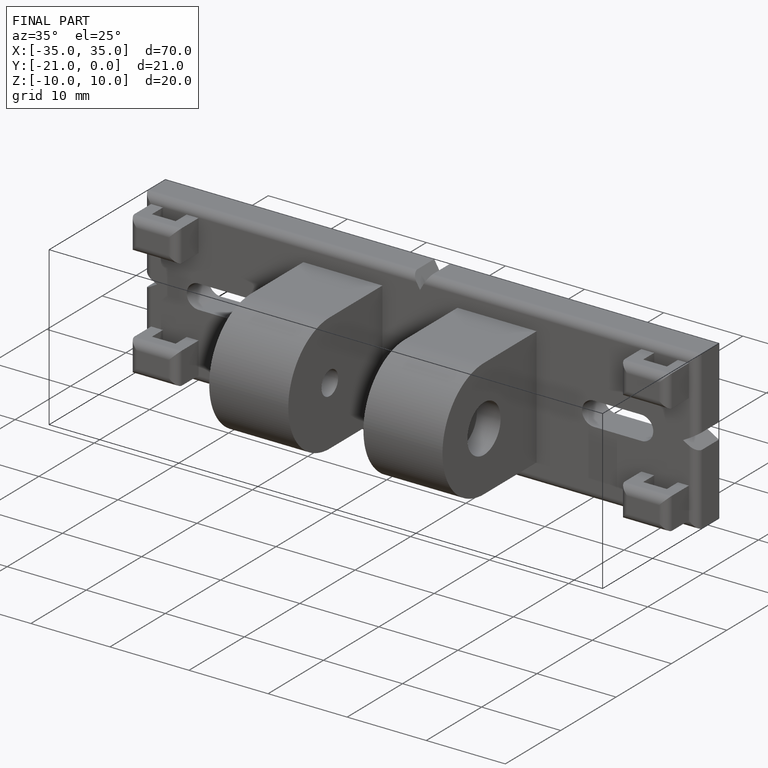
[diagram: finished part — iso view with bounding-box wireframe]
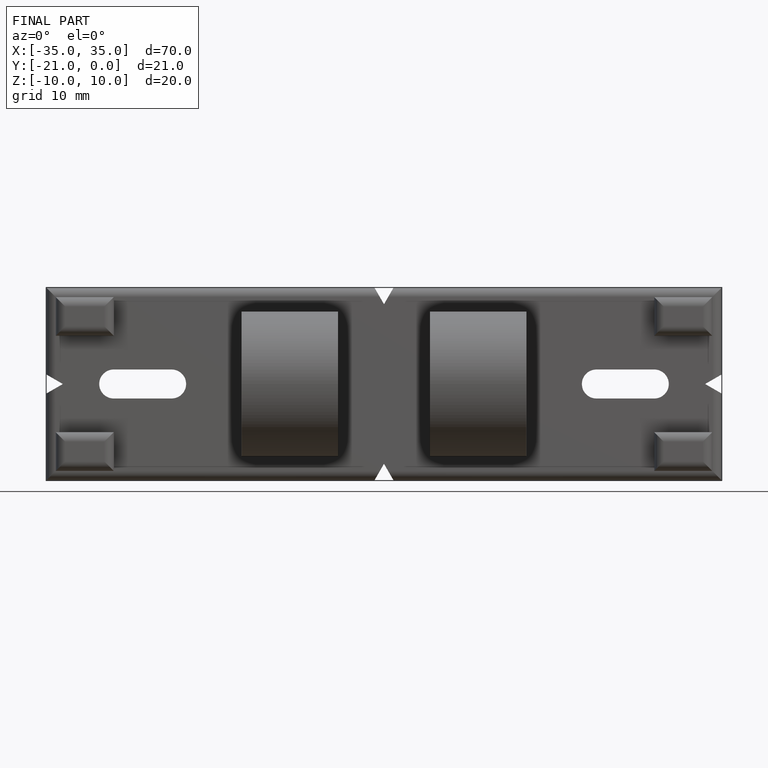
[diagram: finished part — front view with bounding-box wireframe]
